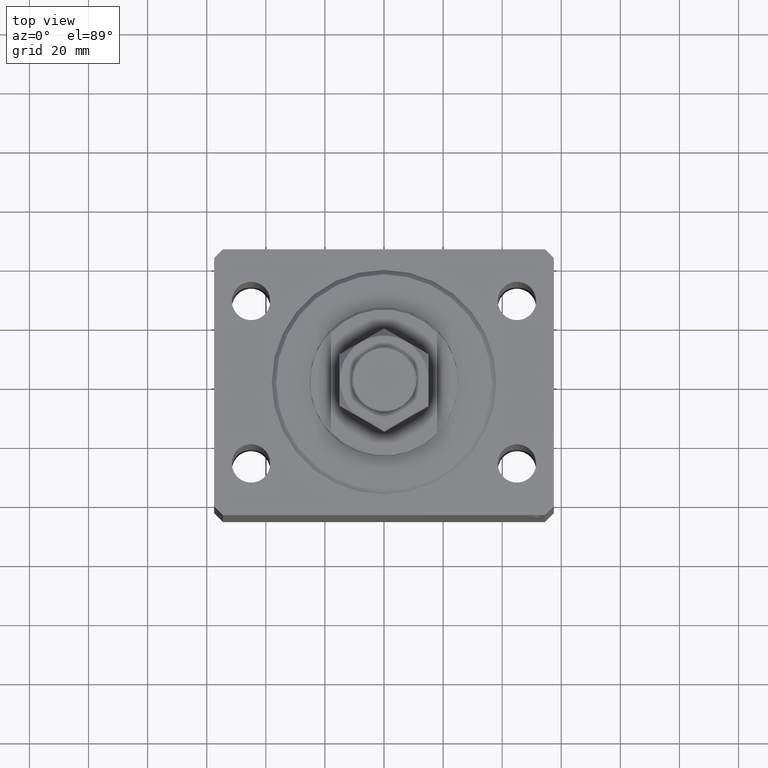
[diagram: clean part render]
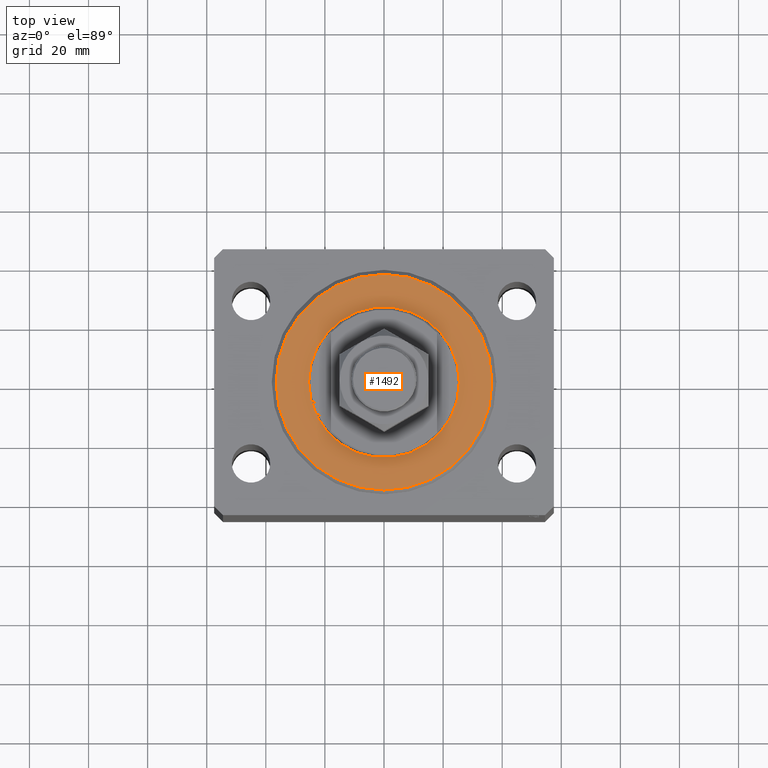
[diagram: same view with one face highlighted and labeled with its STEP entity id]
A machine part, top view. The second image highlights one B-rep face of the part: STEP entity #1492.
In plain terms, the highlighted planar face has unit normal (0, 0, -1).
Its self-contained STEP definition (entity closure, byte-faithful):
#310 = CIRCLE ( 'NONE', #21914, 36.50000000000000000 ) ;
#332 = AXIS2_PLACEMENT_3D ( 'NONE', #12777, #26567, #40843 ) ;
#1492 = ADVANCED_FACE ( 'NONE', ( #33880, #10489 ), #7196, .F. ) ;
#1805 = ORIENTED_EDGE ( 'NONE', *, *, #11594, .T. ) ;
#2596 = ORIENTED_EDGE ( 'NONE', *, *, #6472, .T. ) ;
#3673 = DIRECTION ( 'NONE',  ( 0.000000000000000000, 0.000000000000000000, 1.000000000000000000 ) ) ;
#4608 = DIRECTION ( 'NONE',  ( 1.000000000000000000, 0.000000000000000000, 0.000000000000000000 ) ) ;
#6472 = EDGE_CURVE ( 'NONE', #8754, #43799, #310, .T. ) ;
#7196 = PLANE ( 'NONE',  #27845 ) ;
#8754 = VERTEX_POINT ( 'NONE', #10162 ) ;
#10162 = CARTESIAN_POINT ( 'NONE',  ( -36.50000000000000000, 4.561809326823889791E-15, 0.000000000000000000 ) ) ;
#10210 = VERTEX_POINT ( 'NONE', #15893 ) ;
#10489 = FACE_OUTER_BOUND ( 'NONE', #14698, .T. ) ;
#11594 = EDGE_CURVE ( 'NONE', #18629, #10210, #19811, .T. ) ;
#12777 = CARTESIAN_POINT ( 'NONE',  ( 0.000000000000000000, 0.000000000000000000, 0.000000000000000000 ) ) ;
#12884 = DIRECTION ( 'NONE',  ( 0.000000000000000000, 0.000000000000000000, 1.000000000000000000 ) ) ;
#14698 = EDGE_LOOP ( 'NONE', ( #45368, #2596 ) ) ;
#15176 = CARTESIAN_POINT ( 'NONE',  ( 0.000000000000000000, 0.000000000000000000, 0.000000000000000000 ) ) ;
#15605 = AXIS2_PLACEMENT_3D ( 'NONE', #30427, #12884, #37208 ) ;
#15656 = CARTESIAN_POINT ( 'NONE',  ( 0.000000000000000000, 0.000000000000000000, 0.000000000000000000 ) ) ;
#15893 = CARTESIAN_POINT ( 'NONE',  ( -25.50000000000000355, 3.122849337825751011E-15, 2.168404344971008868E-16 ) ) ;
#16328 = CARTESIAN_POINT ( 'NONE',  ( 36.50000000000000000, 0.000000000000000000, 0.000000000000000000 ) ) ;
#18238 = DIRECTION ( 'NONE',  ( -0.000000000000000000, -0.000000000000000000, -1.000000000000000000 ) ) ;
#18629 = VERTEX_POINT ( 'NONE', #31705 ) ;
#19112 = AXIS2_PLACEMENT_3D ( 'NONE', #15176, #18238, #4608 ) ;
#19811 = CIRCLE ( 'NONE', #332, 25.50000000000000355 ) ;
#20496 = EDGE_LOOP ( 'NONE', ( #1805, #44701 ) ) ;
#21865 = EDGE_CURVE ( 'NONE', #10210, #18629, #23818, .T. ) ;
#21914 = AXIS2_PLACEMENT_3D ( 'NONE', #15656, #26375, #29897 ) ;
#23818 = CIRCLE ( 'NONE', #15605, 25.50000000000000355 ) ;
#26375 = DIRECTION ( 'NONE',  ( -0.000000000000000000, -0.000000000000000000, -1.000000000000000000 ) ) ;
#26567 = DIRECTION ( 'NONE',  ( 0.000000000000000000, 0.000000000000000000, 1.000000000000000000 ) ) ;
#27845 = AXIS2_PLACEMENT_3D ( 'NONE', #42980, #3673, #28282 ) ;
#28282 = DIRECTION ( 'NONE',  ( 1.000000000000000000, 0.000000000000000000, -0.000000000000000000 ) ) ;
#29897 = DIRECTION ( 'NONE',  ( 1.000000000000000000, 0.000000000000000000, 0.000000000000000000 ) ) ;
#30427 = CARTESIAN_POINT ( 'NONE',  ( 0.000000000000000000, 0.000000000000000000, 0.000000000000000000 ) ) ;
#31705 = CARTESIAN_POINT ( 'NONE',  ( 25.50000000000000355, 0.000000000000000000, 2.168404344971008868E-16 ) ) ;
#33347 = EDGE_CURVE ( 'NONE', #43799, #8754, #41489, .T. ) ;
#33880 = FACE_BOUND ( 'NONE', #20496, .T. ) ;
#37208 = DIRECTION ( 'NONE',  ( 1.000000000000000000, 0.000000000000000000, 0.000000000000000000 ) ) ;
#40843 = DIRECTION ( 'NONE',  ( 1.000000000000000000, 0.000000000000000000, 0.000000000000000000 ) ) ;
#41489 = CIRCLE ( 'NONE', #19112, 36.50000000000000000 ) ;
#42980 = CARTESIAN_POINT ( 'NONE',  ( 0.000000000000000000, 0.000000000000000000, 0.000000000000000000 ) ) ;
#43799 = VERTEX_POINT ( 'NONE', #16328 ) ;
#44701 = ORIENTED_EDGE ( 'NONE', *, *, #21865, .T. ) ;
#45368 = ORIENTED_EDGE ( 'NONE', *, *, #33347, .T. ) ;